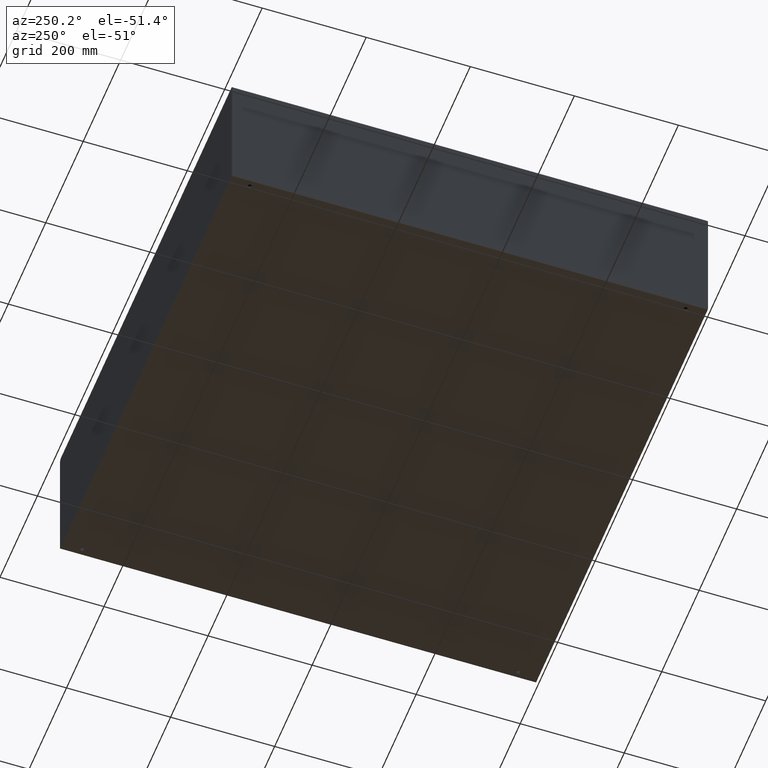
[diagram: clean part render]
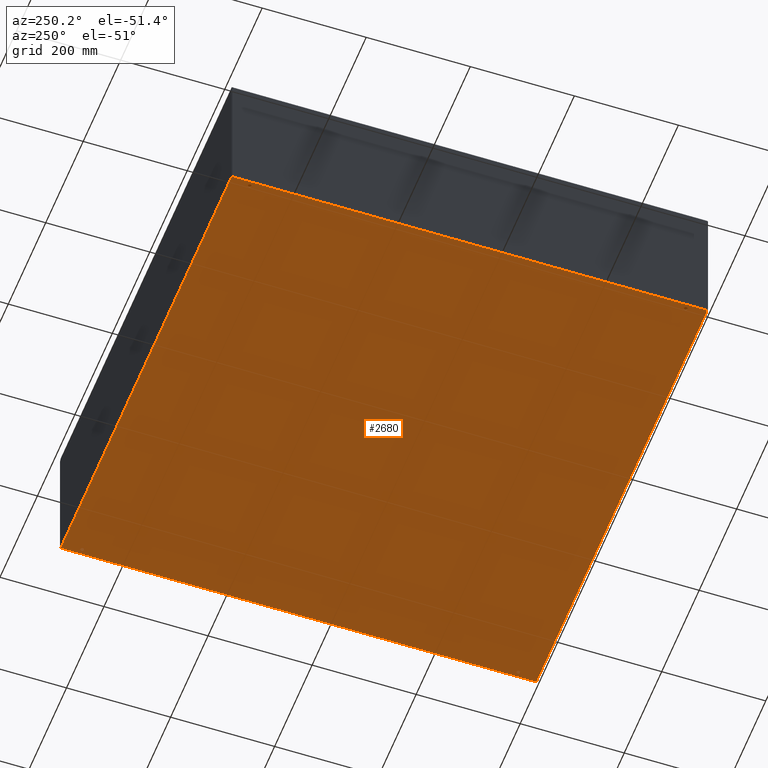
[diagram: same view with one face highlighted and labeled with its STEP entity id]
A machine part, auxiliary view. The second image highlights one B-rep face of the part: STEP entity #2680.
In plain terms, the highlighted planar face has unit normal (0, 0, 1).
Its self-contained STEP definition (entity closure, byte-faithful):
#155=PLANE('',#2878);
#273=LINE('',#3958,#493);
#278=LINE('',#3976,#498);
#282=LINE('',#3990,#502);
#284=LINE('',#3993,#504);
#493=VECTOR('',#3227,36.);
#498=VECTOR('',#3250,36.);
#502=VECTOR('',#3270,35.9688);
#504=VECTOR('',#3274,35.9688);
#686=FACE_BOUND('',#927,.T.);
#687=FACE_BOUND('',#928,.T.);
#688=FACE_BOUND('',#929,.T.);
#689=FACE_BOUND('',#930,.T.);
#690=FACE_BOUND('',#931,.T.);
#927=EDGE_LOOP('',(#1920));
#928=EDGE_LOOP('',(#1921));
#929=EDGE_LOOP('',(#1922));
#930=EDGE_LOOP('',(#1923));
#931=EDGE_LOOP('',(#1924,#1925,#1926,#1927));
#1070=CIRCLE('',#2804,0.140625);
#1072=CIRCLE('',#2807,0.140625);
#1074=CIRCLE('',#2810,0.140625);
#1076=CIRCLE('',#2813,0.140625);
#1166=VERTEX_POINT('',#3804);
#1168=VERTEX_POINT('',#3809);
#1170=VERTEX_POINT('',#3814);
#1172=VERTEX_POINT('',#3819);
#1214=VERTEX_POINT('',#3955);
#1215=VERTEX_POINT('',#3957);
#1218=VERTEX_POINT('',#3973);
#1219=VERTEX_POINT('',#3975);
#1394=EDGE_CURVE('',#1166,#1166,#1070,.T.);
#1396=EDGE_CURVE('',#1168,#1168,#1072,.T.);
#1398=EDGE_CURVE('',#1170,#1170,#1074,.T.);
#1400=EDGE_CURVE('',#1172,#1172,#1076,.T.);
#1466=EDGE_CURVE('',#1215,#1214,#273,.T.);
#1475=EDGE_CURVE('',#1219,#1218,#278,.T.);
#1482=EDGE_CURVE('',#1219,#1214,#282,.T.);
#1484=EDGE_CURVE('',#1215,#1218,#284,.T.);
#1920=ORIENTED_EDGE('',*,*,#1394,.T.);
#1921=ORIENTED_EDGE('',*,*,#1396,.T.);
#1922=ORIENTED_EDGE('',*,*,#1398,.T.);
#1923=ORIENTED_EDGE('',*,*,#1400,.T.);
#1924=ORIENTED_EDGE('',*,*,#1475,.T.);
#1925=ORIENTED_EDGE('',*,*,#1484,.F.);
#1926=ORIENTED_EDGE('',*,*,#1466,.T.);
#1927=ORIENTED_EDGE('',*,*,#1482,.F.);
#2680=ADVANCED_FACE('',(#686,#687,#688,#689,#690),#155,.F.);
#2804=AXIS2_PLACEMENT_3D('',#3805,#3066,#3067);
#2807=AXIS2_PLACEMENT_3D('',#3810,#3072,#3073);
#2810=AXIS2_PLACEMENT_3D('',#3815,#3078,#3079);
#2813=AXIS2_PLACEMENT_3D('',#3820,#3084,#3085);
#2878=AXIS2_PLACEMENT_3D('',#3992,#3272,#3273);
#3066=DIRECTION('center_axis',(0.,0.,1.));
#3067=DIRECTION('ref_axis',(1.,1.31841775055506E-017,9.9035134557342E-014));
#3072=DIRECTION('center_axis',(0.,0.,1.));
#3073=DIRECTION('ref_axis',(1.,6.25507577079227E-016,9.9035134557342E-014));
#3078=DIRECTION('center_axis',(0.,0.,1.));
#3079=DIRECTION('ref_axis',(-1.,-6.12323399573677E-016,0.));
#3084=DIRECTION('center_axis',(0.,0.,1.));
#3085=DIRECTION('ref_axis',(-1.,0.,0.));
#3227=DIRECTION('',(-3.06118744623379E-016,1.,0.));
#3250=DIRECTION('',(3.10823593945801E-016,-1.,0.));
#3270=DIRECTION('',(-1.,-1.554117969729E-016,0.));
#3272=DIRECTION('center_axis',(0.,0.,1.));
#3273=DIRECTION('ref_axis',(1.,0.,0.));
#3274=DIRECTION('',(1.,0.,0.));
#3804=CARTESIAN_POINT('',(0.546874999999992,1.50000000000001,-1.72845398767562E-012));
#3805=CARTESIAN_POINT('Origin',(0.406249999999993,1.50000000000001,-1.742399968839E-012));
#3809=CARTESIAN_POINT('',(0.546874999999981,34.5,-1.72847584245957E-012));
#3810=CARTESIAN_POINT('Origin',(0.406249999999982,34.5,-1.742399968839E-012));
#3814=CARTESIAN_POINT('',(35.453125,1.50000000000002,0.));
#3815=CARTESIAN_POINT('Origin',(35.59375,1.50000000000002,0.));
#3819=CARTESIAN_POINT('',(35.453125,34.5,0.));
#3820=CARTESIAN_POINT('Origin',(35.59375,34.5,0.));
#3955=CARTESIAN_POINT('',(0.015599999999989,36.,1.09273919746571E-017));
#3957=CARTESIAN_POINT('',(0.0156,4.77612251667467E-018,1.09273919746571E-017));
#3958=CARTESIAN_POINT('',(0.0155999999999986,9.,0.));
#3973=CARTESIAN_POINT('',(35.9844,-2.42442403277702E-018,1.09273919746571E-017));
#3975=CARTESIAN_POINT('',(35.9844,36.,1.09273919746571E-017));
#3976=CARTESIAN_POINT('',(35.9844,27.,0.));
#3990=CARTESIAN_POINT('',(36.,36.,0.));
#3992=CARTESIAN_POINT('Origin',(18.,18.,0.));
#3993=CARTESIAN_POINT('',(0.,0.,0.));